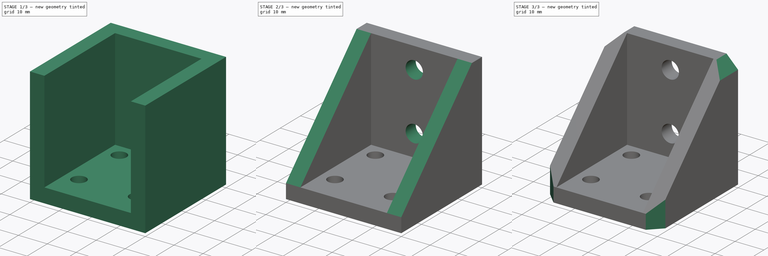
[diagram: build sequence overview — one tinted view per stage of 3, left to right]
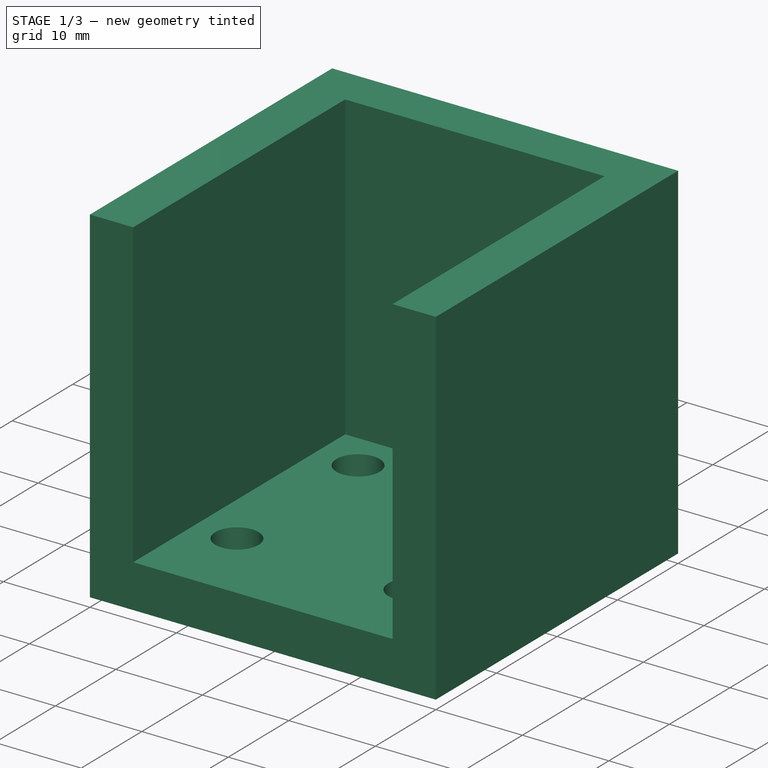
[diagram: stage 1 of 3 — iso view after this stage's code; geometry added in this stage tinted green]
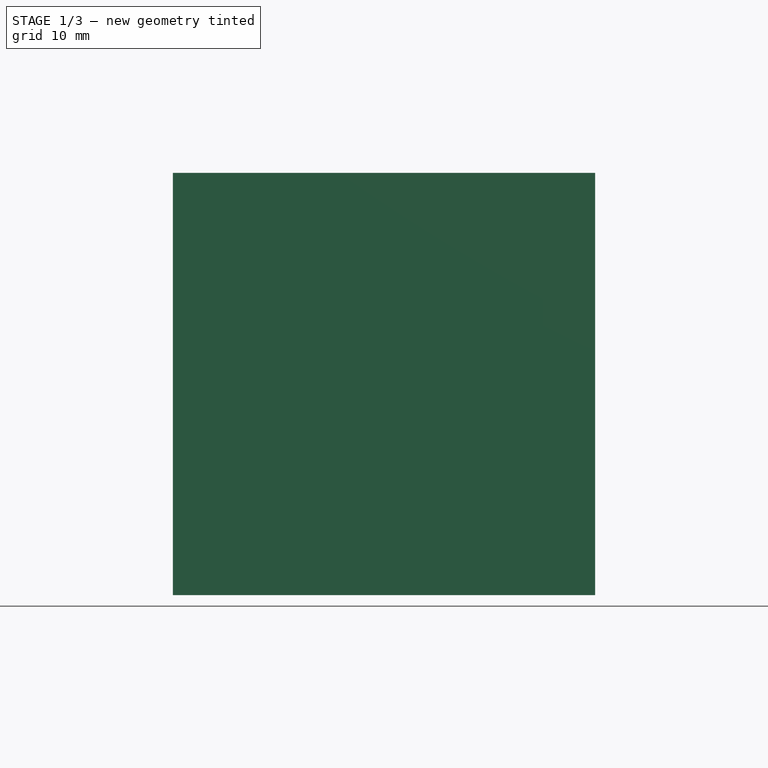
[diagram: stage 1 of 3 — front view after this stage's code; geometry added in this stage tinted green]
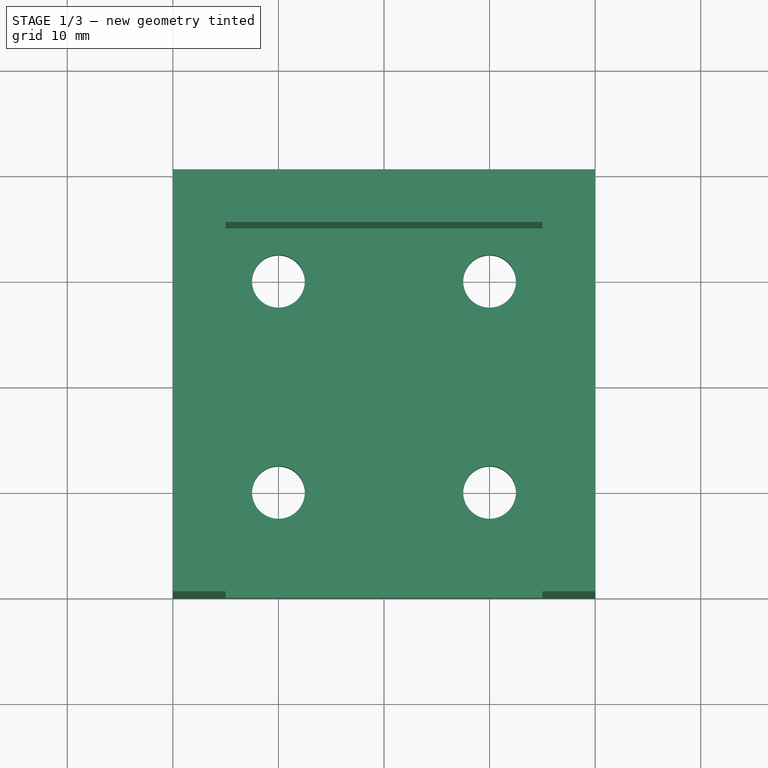
[diagram: stage 1 of 3 — top view after this stage's code; geometry added in this stage tinted green]
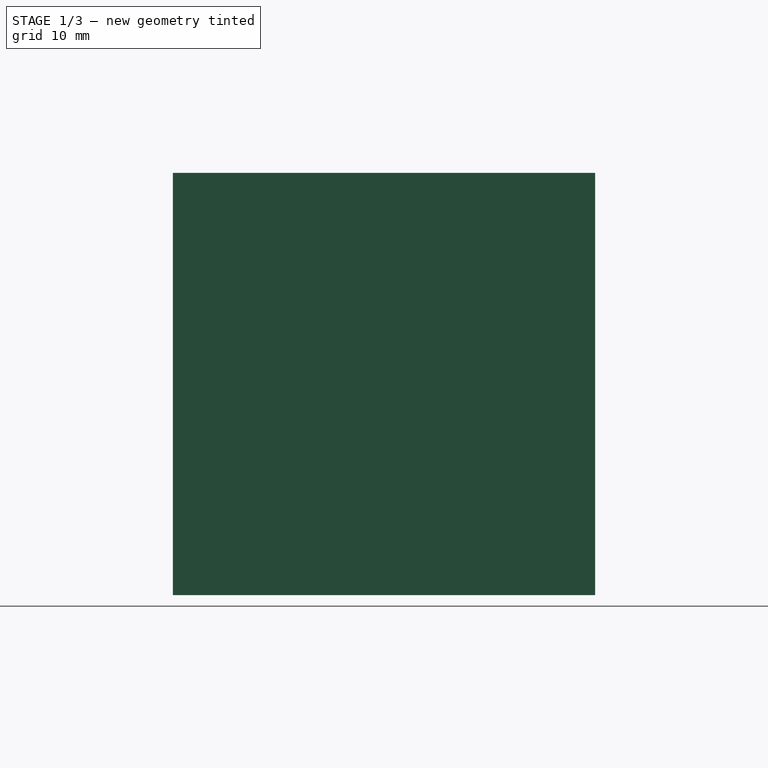
[diagram: stage 1 of 3 — right view after this stage's code; geometry added in this stage tinted green]
FCSTD DOCUMENT  (FreeCAD 0.18R14555 (Git shallow))
Label: top-mount-bracket
License: All rights reserved
LicenseURL: http://en.wikipedia.org/wiki/All_rights_reserved
objects: Sketcher::SketchObject×4, PartDesign::Pad×2, PartDesign::Pocket×2, PartDesign::Chamfer×2, PartDesign::Body×1
note: 15 computed .brp shape members not serialized (recipe doc carries the construction recipe); baked Part::Feature solids carry a one-line shape summary decoded from their .brp

FEATURE [Sketcher::SketchObject] Sketch
  MapMode = 5
  Support = -> [XY_Plane]
  sketch-geometry (19):
    g0: LineSegment StartX=0 StartY=0 StartZ=0 EndX=40 EndY=0 EndZ=0
    g1: LineSegment StartX=40 StartY=0 StartZ=0 EndX=40 EndY=40 EndZ=0
    g2: LineSegment StartX=40 StartY=40 StartZ=0 EndX=0 EndY=40 EndZ=0
    g3: LineSegment StartX=0 StartY=40 StartZ=0 EndX=0 EndY=0 EndZ=0
    g4: LineSegment [constr] StartX=5 StartY=0 StartZ=0 EndX=5 EndY=35 EndZ=0
    g5: LineSegment [constr] StartX=5 StartY=35 StartZ=0 EndX=35 EndY=35 EndZ=0
    g6: LineSegment [constr] StartX=35 StartY=35 StartZ=0 EndX=35 EndY=0 EndZ=0
    g7: LineSegment [constr] StartX=5 StartY=35 StartZ=0 EndX=0 EndY=40 EndZ=0
    g8: LineSegment [constr] StartX=35 StartY=35 StartZ=0 EndX=40 EndY=40 EndZ=0
    g9: LineSegment [constr] StartX=10 StartY=30 StartZ=0 EndX=30 EndY=30 EndZ=0
    g10: LineSegment [constr] StartX=30 StartY=30 StartZ=0 EndX=30 EndY=10 EndZ=0
    g11: LineSegment [constr] StartX=30 StartY=10 StartZ=0 EndX=10 EndY=10 EndZ=0
    g12: LineSegment [constr] StartX=10 StartY=10 StartZ=0 EndX=10 EndY=30 EndZ=0
    g13: Circle CenterX=10 CenterY=30 CenterZ=0 NormalX=0 NormalY=0 NormalZ=1 AngleXU=0 Radius=2.5
    g14: Circle CenterX=30 CenterY=30 CenterZ=0 NormalX=0 NormalY=0 NormalZ=1 AngleXU=0 Radius=2.5
    g15: Circle CenterX=30 CenterY=10 CenterZ=0 NormalX=0 NormalY=0 NormalZ=1 AngleXU=0 Radius=2.5
    g16: Circle CenterX=10 CenterY=10 CenterZ=0 NormalX=0 NormalY=0 NormalZ=1 AngleXU=0 Radius=2.5
    g17: LineSegment [constr] StartX=10 StartY=30 StartZ=0 EndX=5 EndY=35 EndZ=0
    g18: LineSegment [constr] StartX=30 StartY=30 StartZ=0 EndX=35 EndY=35 EndZ=0
  constraints (49):
    c: Coincident(g0,g1)
    c: Coincident(g1,g2)
    c: Coincident(g2,g3)
    c: Coincident(g3,g0)
    c: Horizontal(g0)
    c: Horizontal(g2)
    c: Vertical(g1)
    c: Vertical(g3)
    c: Coincident(g0,g-1)
    c: Equal(g2,g1)
    c: DistanceX(g2,g2) = 40
    c: PointOnObject(g4,g0)
    c: Vertical(g4)
    c: Coincident(g5,g4)
    c: Horizontal(g5)
    c: Coincident(g6,g5)
    c: PointOnObject(g6,g0)
    c: Vertical(g6)
    c: Coincident(g7,g4)
    c: Coincident(g7,g2)
    c: Coincident(g8,g5)
    c: Coincident(g8,g1)
    c: Equal(g8,g7)
    c: DistanceX(g2,g4) = 5
    c: DistanceY(g4,g2) = 5
    c: Coincident(g9,g10)
    c: Coincident(g10,g11)
    c: Coincident(g11,g12)
    c: Coincident(g12,g9)
    c: Horizontal(g9)
    c: Horizontal(g11)
    c: Vertical(g10)
    c: Vertical(g12)
    c: Coincident(g13,g9)
    c: Coincident(g14,g9)
    c: Coincident(g15,g10)
    c: Coincident(g16,g11)
    c: Equal(g16,g13)
    c: Equal(g13,g14)
    c: Equal(g14,g15)
    c: Radius(g13) = 2.5
    c: Equal(g12,g9)
    c: DistanceX(g9,g9) = 20
    c: Coincident(g17,g13)
    c: Coincident(g17,g4)
    c: Coincident(g18,g14)
    c: Coincident(g18,g5)
    c: Equal(g17,g18)
    c: DistanceY(g13,g4) = 5
FEATURE [PartDesign::Pad] Pad
  Length = 5
  Length2 = 100
  Profile = -> Sketch
  Type = 0
FEATURE [Sketcher::SketchObject] Sketch001
  ExternalGeometry = -> [Pad]
  MapMode = 5
  Placement = pos=(0,0,5) rot=(0,0,1;0rad)
  Support = -> [Pad]
  sketch-geometry (9):
    g0: LineSegment StartX=0 StartY=0 StartZ=0 EndX=5 EndY=0 EndZ=0
    g1: LineSegment StartX=5 StartY=0 StartZ=0 EndX=5 EndY=35 EndZ=0
    g2: LineSegment StartX=5 StartY=35 StartZ=0 EndX=35 EndY=35 EndZ=0
    g3: LineSegment StartX=35 StartY=35 StartZ=0 EndX=35 EndY=0 EndZ=0
    g4: LineSegment StartX=35 StartY=0 StartZ=0 EndX=40 EndY=0 EndZ=0
    g5: LineSegment StartX=40 StartY=0 StartZ=0 EndX=40 EndY=40 EndZ=0
    g6: LineSegment StartX=40 StartY=40 StartZ=0 EndX=0 EndY=40 EndZ=0
    g7: LineSegment StartX=0 StartY=40 StartZ=0 EndX=0 EndY=0 EndZ=0
    g8: LineSegment [constr] StartX=5 StartY=35 StartZ=0 EndX=5 EndY=40 EndZ=0
  constraints (24):
    c: Horizontal(g0)
    c: Coincident(g0,g1)
    c: Vertical(g1)
    c: Coincident(g1,g2)
    c: Horizontal(g2)
    c: Coincident(g2,g3)
    c: Vertical(g3)
    c: Coincident(g3,g4)
    c: Horizontal(g4)
    c: Coincident(g4,g5)
    c: Vertical(g5)
    c: Coincident(g5,g6)
    c: Horizontal(g6)
    c: Coincident(g6,g7)
    c: Coincident(g7,g0)
    c: Equal(g0,g4)
    c: Coincident(g8,g1)
    c: PointOnObject(g8,g6)
    c: Vertical(g8)
    c: Equal(g0,g8)
    c: Coincident(g0,g-1)
    c: Coincident(g4,g-4)
    c: Coincident(g6,g-3)
    c: DistanceY(g8,g8) = 5
FEATURE [PartDesign::Pad] Pad001
  BaseFeature = -> Pad
  Length = 35
  Length2 = 100
  Profile = -> Sketch001
  Type = 0
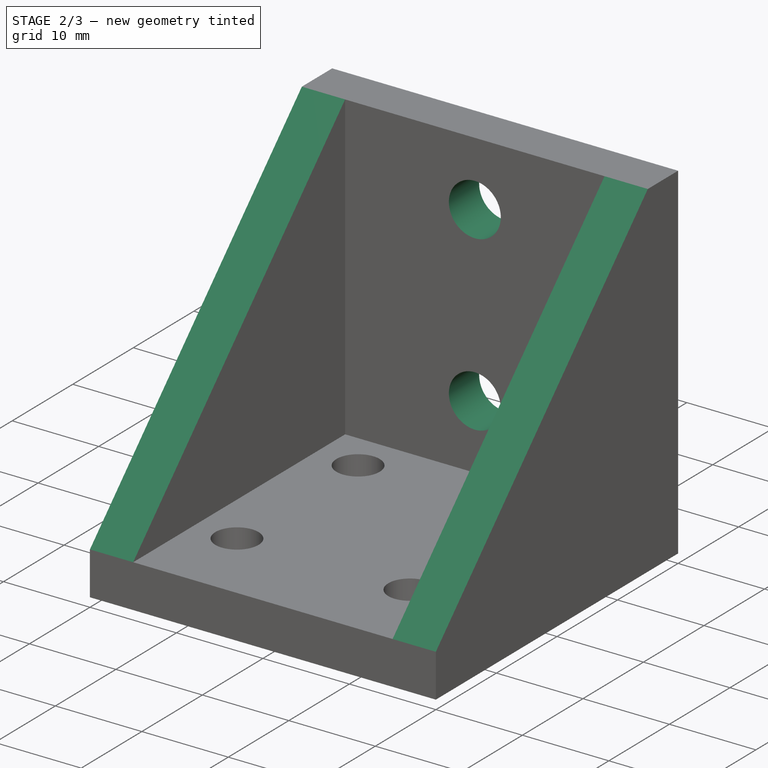
[diagram: stage 2 of 3 — iso view after this stage's code; geometry added in this stage tinted green]
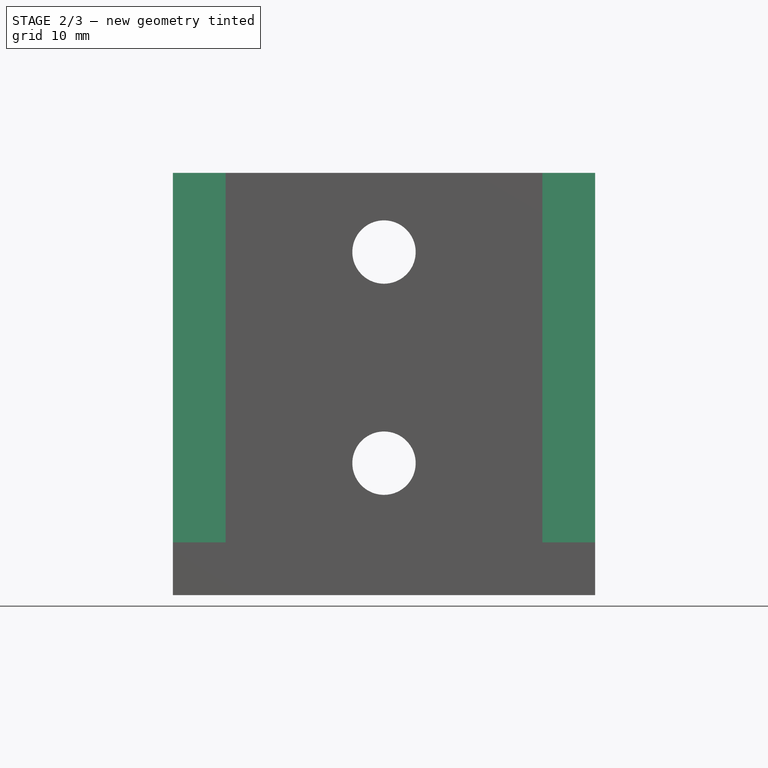
[diagram: stage 2 of 3 — front view after this stage's code; geometry added in this stage tinted green]
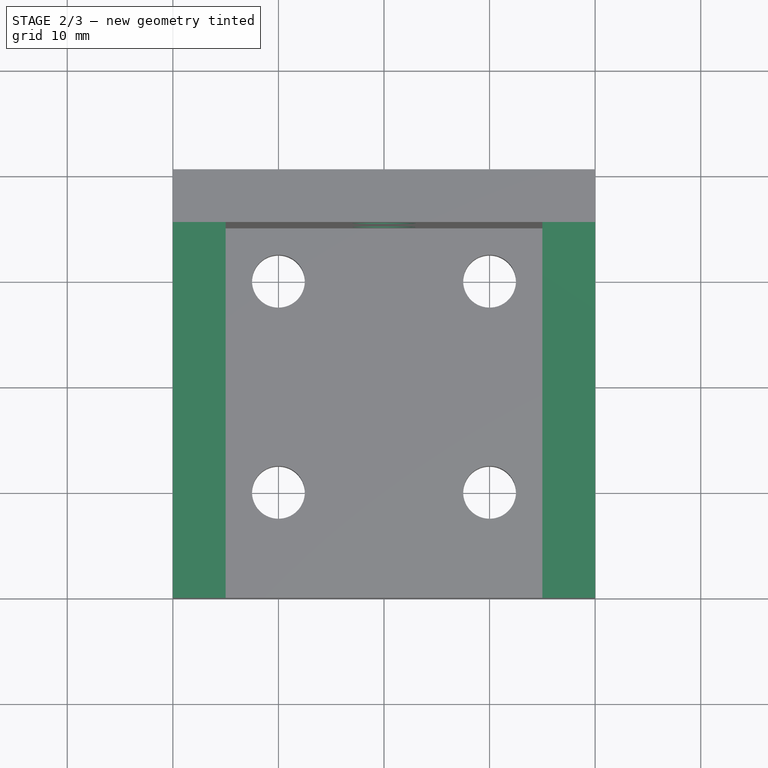
[diagram: stage 2 of 3 — top view after this stage's code; geometry added in this stage tinted green]
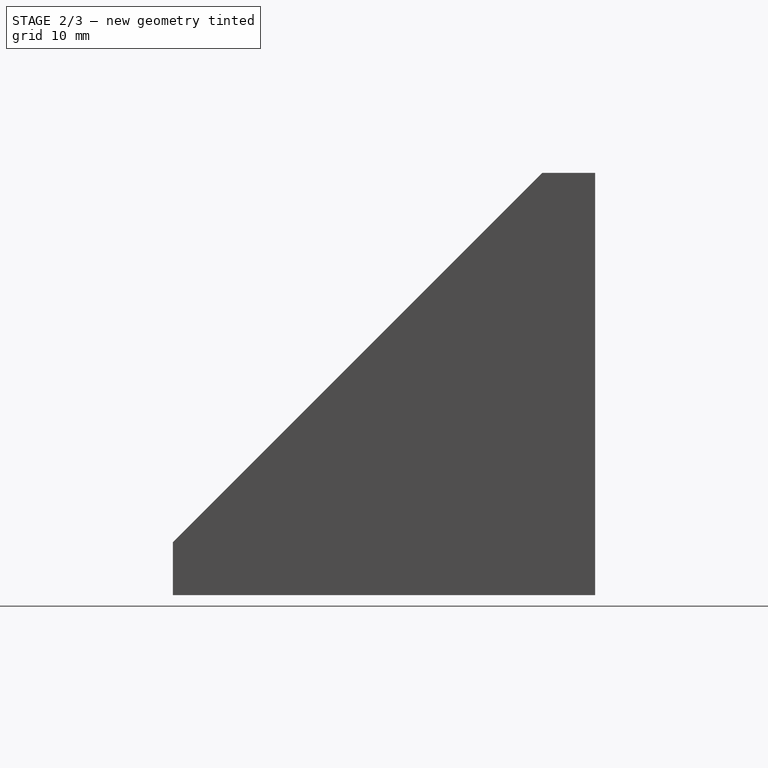
[diagram: stage 2 of 3 — right view after this stage's code; geometry added in this stage tinted green]
FEATURE [Sketcher::SketchObject] Sketch002
  ExternalGeometry = -> [Pad001]
  MapMode = 5
  Placement = pos=(0,35,0) rot=(1,0,0;1.5708rad)
  Support = -> [Pad001]
  sketch-geometry (7):
    g0: Circle CenterX=20 CenterY=32.5 CenterZ=0 NormalX=0 NormalY=0 NormalZ=1 AngleXU=0 Radius=3
    g1: Circle CenterX=20 CenterY=12.5 CenterZ=0 NormalX=0 NormalY=0 NormalZ=1 AngleXU=0 Radius=3
    g2: LineSegment [constr] StartX=5 StartY=5 StartZ=0 EndX=20 EndY=12.5 EndZ=0
    g3: LineSegment [constr] StartX=20 StartY=12.5 StartZ=0 EndX=20 EndY=32.5 EndZ=0
    g4: LineSegment [constr] StartX=20 StartY=32.5 StartZ=0 EndX=5 EndY=40 EndZ=0
    g5: LineSegment [constr] StartX=20 StartY=32.5 StartZ=0 EndX=35 EndY=40 EndZ=0
    g6: Circle [constr] CenterX=20 CenterY=32.5 CenterZ=0 NormalX=0 NormalY=0 NormalZ=1 AngleXU=0 Radius=6.5
  constraints (16):
    c: Coincident(g2,g-5)
    c: Coincident(g2,g1)
    c: Coincident(g3,g1)
    c: Coincident(g3,g0)
    c: Coincident(g4,g0)
    c: Coincident(g4,g-3)
    c: Vertical(g3)
    c: Coincident(g5,g0)
    c: Coincident(g5,g-4)
    c: Equal(g5,g4)
    c: Equal(g4,g2)
    c: Equal(g0,g1)
    c: Radius(g0) = 3
    c: Coincident(g6,g0)
    c: Radius(g6) = 6.5
    c: DistanceY(g3,g3) = 20
FEATURE [PartDesign::Pocket] Pocket
  BaseFeature = -> Pad001
  Length = 5
  Length2 = 100
  Profile = -> Sketch002
  Type = 1
FEATURE [Sketcher::SketchObject] Sketch003
  ExternalGeometry = -> [Pocket]
  MapMode = 5
  Placement = pos=(40,0,0) rot=(0.57735,0.57735,0.57735;2.0944rad)
  Support = -> [Pocket]
  sketch-geometry (3):
    g0: LineSegment StartX=0 StartY=40 StartZ=0 EndX=0 EndY=5 EndZ=0
    g1: LineSegment StartX=0 StartY=5 StartZ=0 EndX=35 EndY=40 EndZ=0
    g2: LineSegment StartX=35 StartY=40 StartZ=0 EndX=0 EndY=40 EndZ=0
  constraints (6):
    c: Coincident(g0,g1)
    c: Coincident(g1,g2)
    c: Coincident(g2,g0)
    c: Coincident(g0,g-3)
    c: Coincident(g1,g-4)
    c: Coincident(g0,g-4)
FEATURE [PartDesign::Pocket] Pocket001
  BaseFeature = -> Pocket
  Length = 5
  Length2 = 100
  Profile = -> Sketch003
  Type = 1
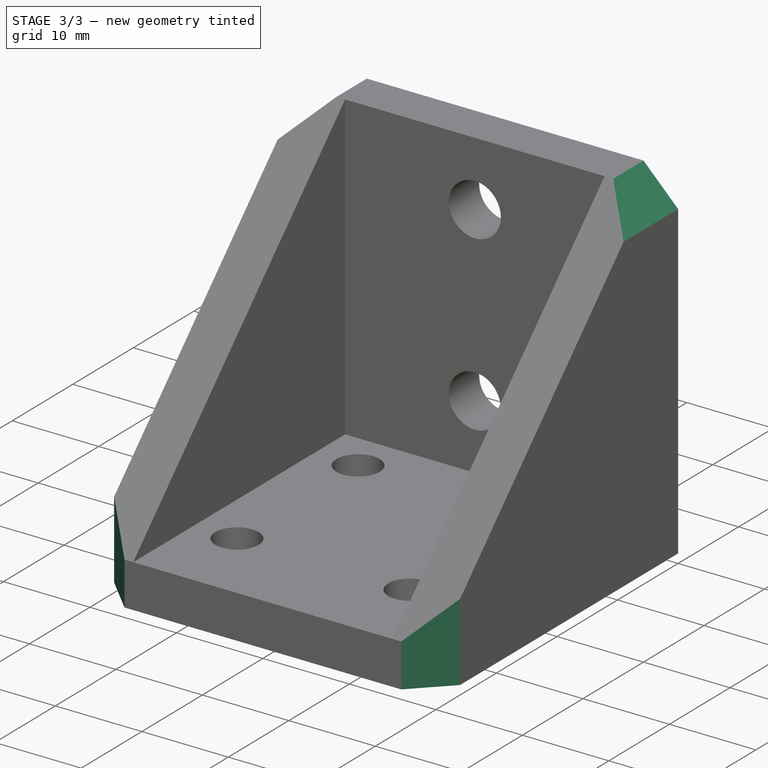
[diagram: stage 3 of 3 — iso view after this stage's code; geometry added in this stage tinted green]
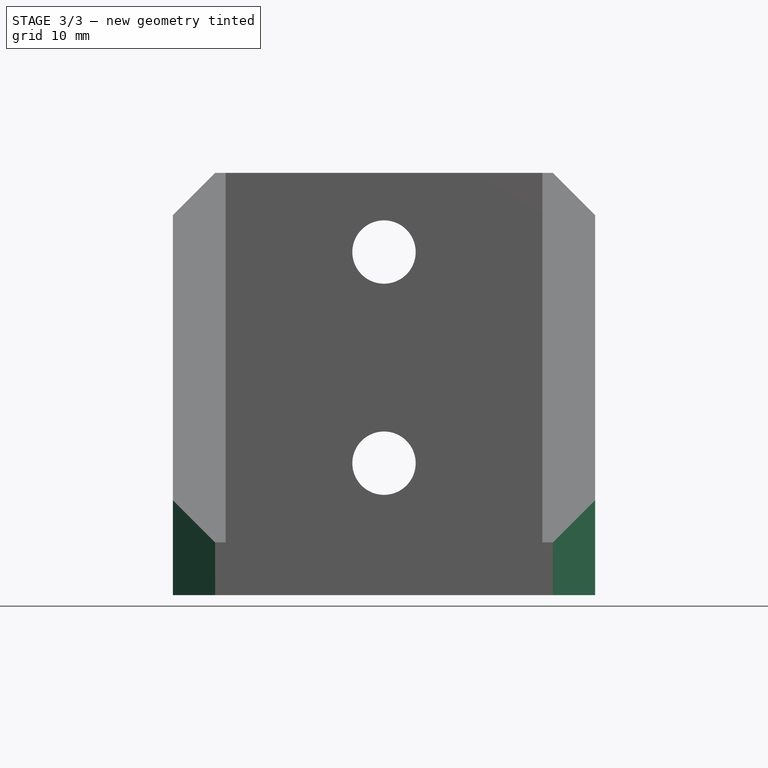
[diagram: stage 3 of 3 — front view after this stage's code; geometry added in this stage tinted green]
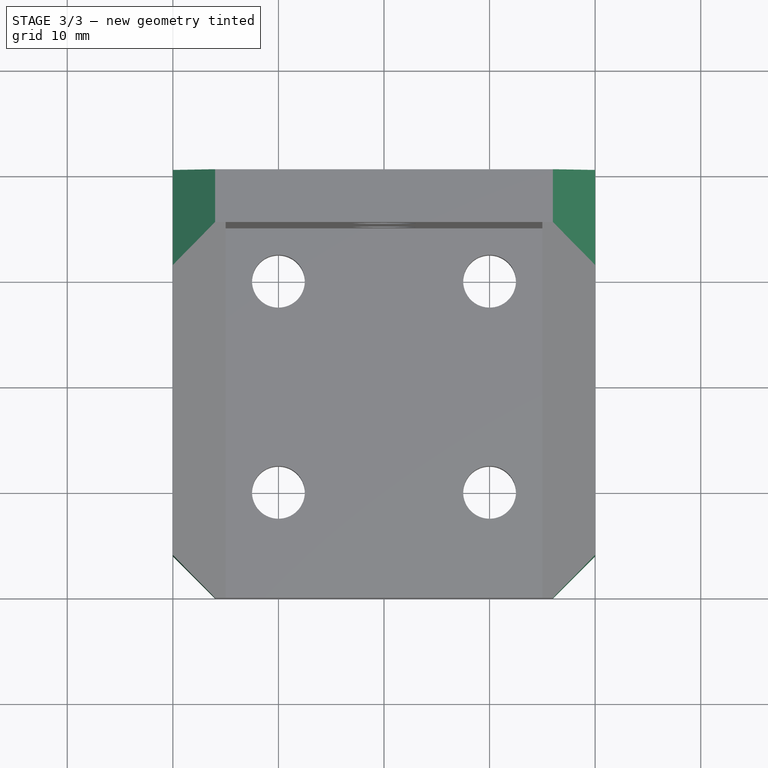
[diagram: stage 3 of 3 — top view after this stage's code; geometry added in this stage tinted green]
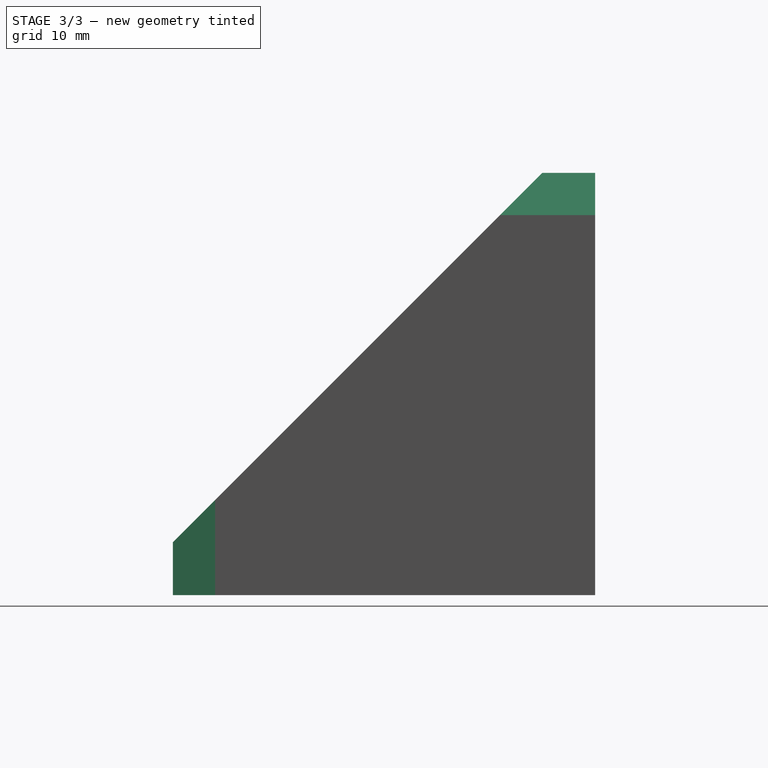
[diagram: stage 3 of 3 — right view after this stage's code; geometry added in this stage tinted green]
FEATURE [PartDesign::Chamfer] Chamfer
  Base = -> Pocket001 [Edge35,Edge32]
  BaseFeature = -> Pocket001
  Size = 4
FEATURE [PartDesign::Chamfer] Chamfer001
  Base = -> Chamfer [Edge18,Edge17]
  BaseFeature = -> Chamfer
  Size = 4
FEATURE [PartDesign::Body] Body
  Group = -> [Sketch,Pad,Sketch001,Pad001,Sketch002,Pocket,Sketch003,Pocket001,Chamfer,Chamfer001]
  Origin = -> Origin
  Tip = -> Chamfer001
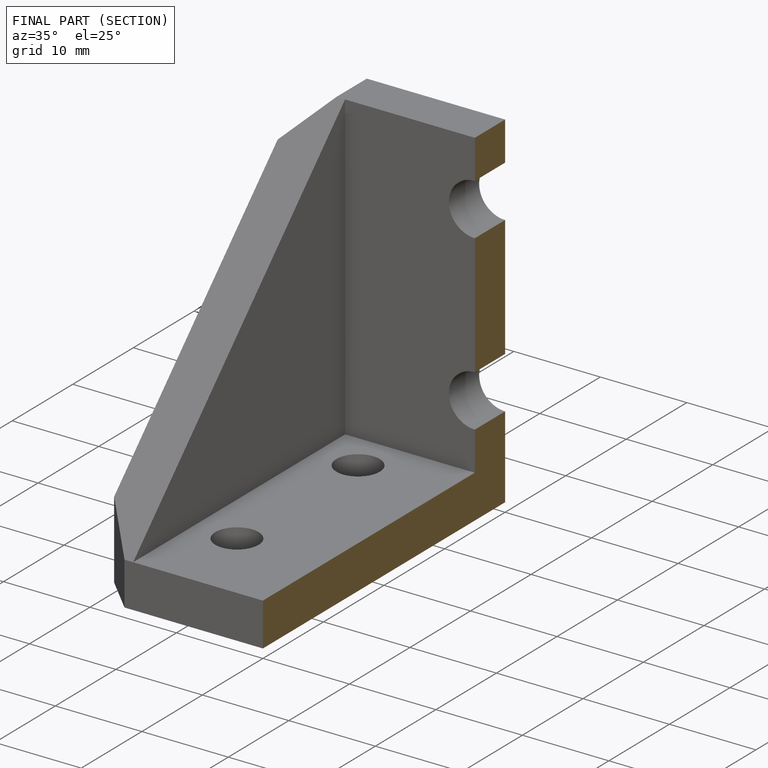
[diagram: finished part — half-section view (interior)]
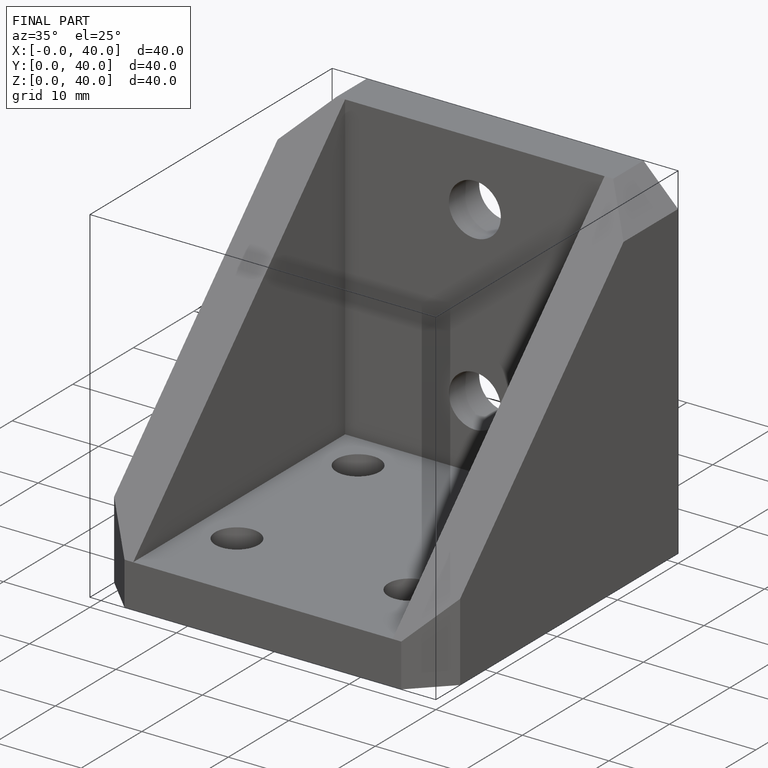
[diagram: finished part — iso view with bounding-box wireframe]
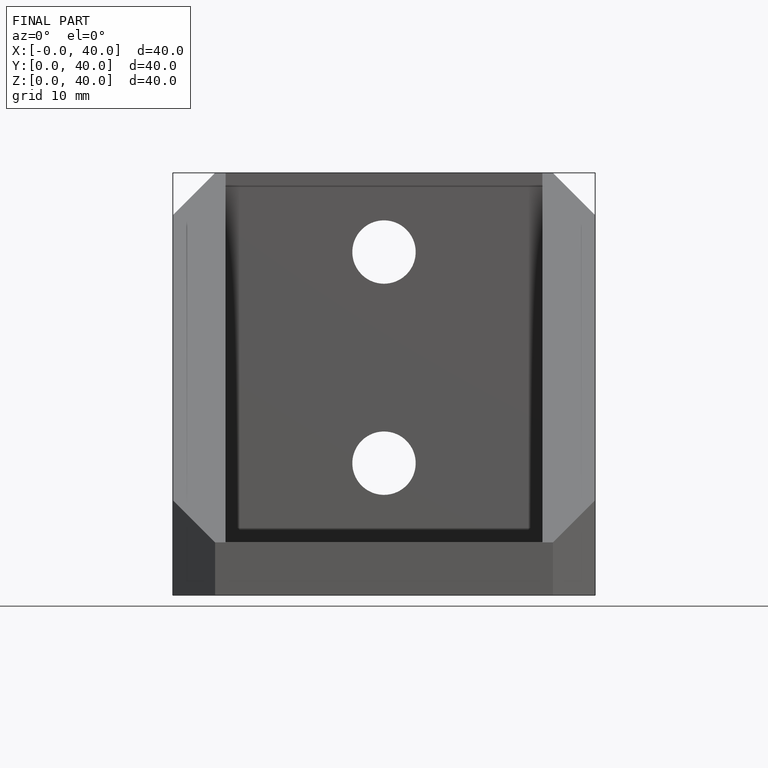
[diagram: finished part — front view with bounding-box wireframe]
